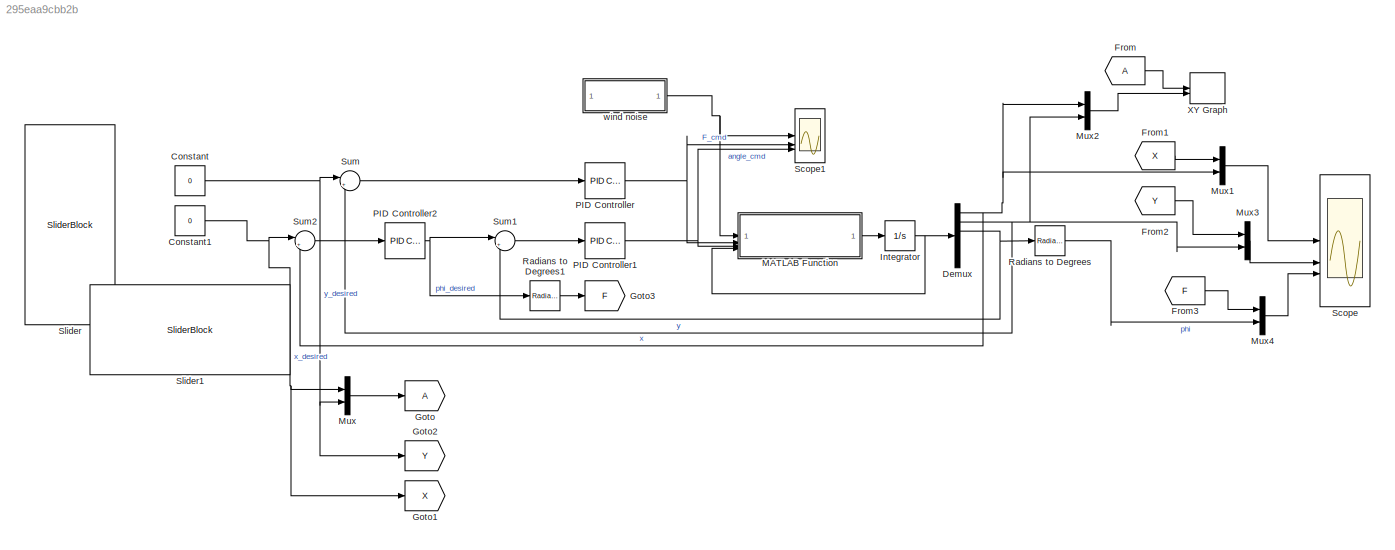
MODEL slx_295eaa9cbb2b
KIND model
CONFIG AbsTol = auto
CONFIG EnableMultiTasking = off
CONFIG FixedStep = 1e-3
CONFIG MaxStep = auto
CONFIG MinStep = auto
CONFIG RelTol = 1e-3
CONFIG SampleTimeConstraint = Unconstrained
CONFIG SolverName = FixedStepAuto
CONFIG StartTime = 0.0
CONFIG StopTime = 30
BLOCK [Constant] Constant
  Value = 0
BLOCK [Constant] Constant1
  Value = 0
BLOCK [Demux] Demux
  Outputs = 6
BLOCK [From] From
BLOCK [From] From1
  GotoTag = X
  IconDisplay = Signal name
BLOCK [From] From2
  GotoTag = Y
  IconDisplay = Signal name
BLOCK [From] From3
  GotoTag = F
  IconDisplay = Signal name
BLOCK [Goto] Goto
BLOCK [Goto] Goto1
  GotoTag = X
BLOCK [Goto] Goto2
  GotoTag = Y
BLOCK [Goto] Goto3
  GotoTag = F
BLOCK [Integrator] Integrator
  InitialCondition = [0;0;0;0;0;0]
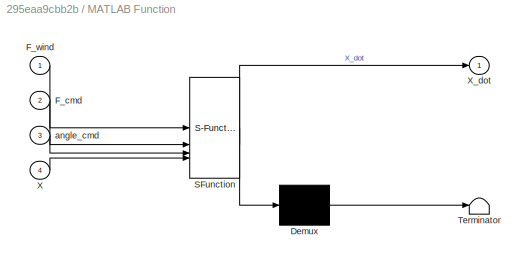
BLOCK [SubSystem] MATLAB Function
  ErrorFcn = Stateflow.Translate.translate
  LibrarySourceBlock = simulink/User-Defined\nFunctions/MATLAB Function
  PermitHierarchicalResolution = ExplicitOnly
  SFBlockType = MATLAB Function
  TreatAsAtomicUnit = on
BLOCK [Demux] MATLAB Function/ Demux 
  Outputs = 1
BLOCK [S-Function] MATLAB Function/ SFunction 
  EnableBusSupport = on
  FunctionName = sf_sfun
  PortCounts = [4 2]
  SFcnIsStateOwnerBlock = off
  SFunctionDeploymentMode = off
  Tag = Stateflow S-Function 2
BLOCK [Terminator] MATLAB Function/ Terminator 
BLOCK [Inport] MATLAB Function/F_cmd
  Port = 2
BLOCK [Inport] MATLAB Function/F_wind
BLOCK [Inport] MATLAB Function/X
  Port = 4
BLOCK [Outport] MATLAB Function/X_dot
BLOCK [Inport] MATLAB Function/angle_cmd
  Port = 3
BLOCK [Mux] Mux
  DisplayOption = bar
  Inputs = 2
BLOCK [Mux] Mux1
  DisplayOption = bar
  Inputs = 2
BLOCK [Mux] Mux2
  DisplayOption = bar
  Inputs = 2
BLOCK [Mux] Mux3
  DisplayOption = bar
  Inputs = 2
BLOCK [Mux] Mux4
  DisplayOption = bar
  Inputs = 2
BLOCK [Reference] PID Controller  REF=slpidlib/PID Controller
  LibrarySourceBlock = simulink/Continuous/PID Controller
  SourceBlock = slpidlib/PID Controller
  SourceType = PID 1dof
BLOCK [Reference] PID Controller1  REF=slpidlib/PID Controller
  LibrarySourceBlock = simulink/Continuous/PID Controller
  SourceBlock = slpidlib/PID Controller
  SourceType = PID 1dof
BLOCK [Reference] PID Controller2  REF=slpidlib/PID Controller
  LibrarySourceBlock = simulink/Continuous/PID Controller
  SourceBlock = slpidlib/PID Controller
  SourceType = PID 1dof
BLOCK [Reference] Radians to Degrees  REF=simulink_extras/Transformations/Radians
to Degrees
  SourceBlock = simulink_extras/Transformations/Radians\nto Degrees
  SourceType = RadiansToDegrees
BLOCK [Reference] Radians to Degrees1  REF=simulink_extras/Transformations/Radians
to Degrees
  SourceBlock = simulink_extras/Transformations/Radians\nto Degrees
  SourceType = RadiansToDegrees
BLOCK [Scope] Scope
  Floating = off
  NumInputPorts = 3
  ScopeSpecificationString = Simulink.scopes.TimeScopeBlockCfg('CurrentConfiguration', extmgr.ConfigurationSet(extmgr.Configuration('Core','General UI',true),extmgr.Configuration('Core','Source UI',true),extmgr.Configuration('Sources','WiredSimulink',true,'DataLoggingSaveFormat','StructureWithTime'),extmgr.Configuration('Visuals','Time Domain',true,'SerializedDisplays',{struct('MinYLimReal','-0.14143','MaxYLimReal','1.27288',...<+2898ch>
BLOCK [Scope] Scope1
  Floating = off
  NumInputPorts = 3
  ScopeSpecificationString = Simulink.scopes.TimeScopeBlockCfg('CurrentConfiguration', extmgr.ConfigurationSet(extmgr.Configuration('Core','General UI',true),extmgr.Configuration('Core','Source UI',true),extmgr.Configuration('Sources','WiredSimulink',true,'DataLoggingVariableName','ScopeData1'),extmgr.Configuration('Visuals','Time Domain',true,'SerializedDisplays',{struct('MinYLimReal','-0.01918','MaxYLimReal','0.17263','YLab...<+1458ch>
BLOCK [SliderBlock] Slider
  NameLocation = left
  ScaleMax = 5
  ScaleMin = -5
BLOCK [SliderBlock] Slider1
  ScaleMax = 5
  ScaleMin = -5
BLOCK [Sum] Sum
  Inputs = |+-
BLOCK [Sum] Sum1
  Inputs = |+-
BLOCK [Sum] Sum2
  Inputs = |+-
BLOCK [Record] XY Graph
  CompatibilityTag = XY
  FileSettingsInternal = {"entries":[{"content":{"excelSettings":{"content":{},"type":"Streamout.ExcelSettings"}},"type":"Streamout.FileSettingStorage","uuid":""}],"packageUris":["http:\/\/schema.mathworks.com\/mf0\/streamout_blocks\/R2020a"],"version":"1.0"}
  Layout = [1 1]
  SignalsInternal = {"entries":[{"content":{"signals":[{"content":{"blockPath":[],"dimensions":[2],"domain":"","hasChildren":true,"lineColor":"#a2142f","port":2,"sid":[""],"signalID":27,"signalName":"Mux2"},"type":"RecordBlkView.Signal","uuid":""},{"content":{"blockPath":[],"channel":[1],"dimensions":[2],"domain":"","lineColor":"#22b573","parentID":27,"plots":[1],"port":2,"sid":[""],"signalID":28,"signalName":"Mux2"}...<+1022ch>
  VisualizationBindings = {"xyplotplugin":{"info":[{"series":[{"bindingParametersList":[{"parameter":"X-Axis","signalID":28,"signalName":"Mux2(1)"},{"parameter":"Y-Axis","signalID":45,"signalName":"Mux2(2)"}],"seriesID":12470},{"bindingParametersList":[{"parameter":"X-Axis","signalID":33,"signalName":"From(1)"},{"parameter":"Y-Axis","signalID":46,"signalName":"From(2)"}],"seriesID":12256}],"subplotID":1}]}}
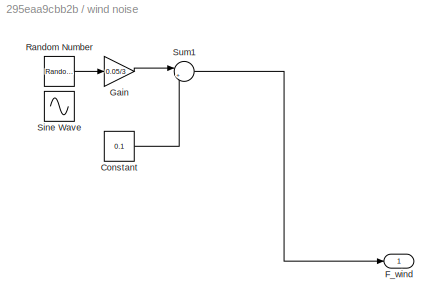
BLOCK [SubSystem] wind noise
BLOCK [Constant] wind noise/Constant
  Value = 0.1
BLOCK [Outport] wind noise/F_wind
BLOCK [Gain] wind noise/Gain
  Gain = 0.05/3
BLOCK [RandomNumber] wind noise/Random Number
  SampleTime = 0.1
BLOCK [Sin] wind noise/Sine Wave
  Amplitude = 0.1
  Frequency = 0.5
  SampleTime = 0
BLOCK [Sum] wind noise/Sum1
  Inputs = |++
NET Constant1:1 -> Goto1:1, Mux:1, Sum2:1
NET Constant:1 -> Goto2:1, Mux:2, Sum:1
NET Demux:1 -> Mux1:2, Mux2:1, Sum2:2
NET Demux:2 -> Mux2:2, Mux3:2, Sum:2
NET Demux:3 -> Radians to Degrees:1, Sum1:2
LINE From1:1 -> Mux1:1
LINE From2:1 -> Mux3:1
LINE From3:1 -> Mux4:1
LINE From:1 -> XY Graph:1
NET Integrator:1 -> Demux:1, MATLAB Function:4
LINE MATLAB Function:1 -> Integrator:1
LINE Mux1:1 -> Scope:1
LINE Mux2:1 -> XY Graph:2
LINE Mux3:1 -> Scope:2
LINE Mux4:1 -> Scope:3
LINE Mux:1 -> Goto:1
NET PID Controller1:1 -> MATLAB Function:3, Scope1:3
NET PID Controller2:1 -> Radians to Degrees1:1, Sum1:1
NET PID Controller:1 -> MATLAB Function:2, Scope1:2
LINE Radians to Degrees1:1 -> Goto3:1
LINE Radians to Degrees:1 -> Mux4:2
LINE Sum1:1 -> PID Controller1:1
LINE Sum2:1 -> PID Controller2:1
LINE Sum:1 -> PID Controller:1
LINE wind noise/Constant:1 -> wind noise/Sum1:2
LINE wind noise/Gain:1 -> wind noise/Sum1:1
LINE wind noise/Random Number:1 -> wind noise/Gain:1
LINE wind noise/Sum1:1 -> wind noise/F_wind:1
NET wind noise:1 -> MATLAB Function:1, Scope1:1
note: NET lines group one-source signal fan-out (src -> all destinations, sorted); 1:1 wires keep LINE
CHART MATLAB Function states=1 transitions=1
  STATE_LABEL 'eML_blk_kernel()'
  STATE_LABEL 'SCRIPT:\nfunction X_dot = fcn(F_wind, F_cmd, angle_cmd, X)\n% Dle https://cookierobotics.com/052/\n% [x1; x2; x3; x4; x5; x6] = [x, y, phi, x_dot, y_dot, phi_dot]\nx1 = X(1);\nx2 = X(2);\nx3 = X(3);\nx4 = X(4);\nx5 = X(5);\nx6 = X(6);\n\ng = 9.81;\nm = 0.5; %[kg]\nIxx = 0.00025; %[kg*m^2]\nL = 0.086; %[m]\nk = 0.1; % tlumení\n\nF1 = F_cmd + angle_cmd; % Celková tažná síla na 1. motoru\nF2 = F_cmd - angle_cmd; % Cel...<+289ch>'
CHART  states=0 transitions=0
